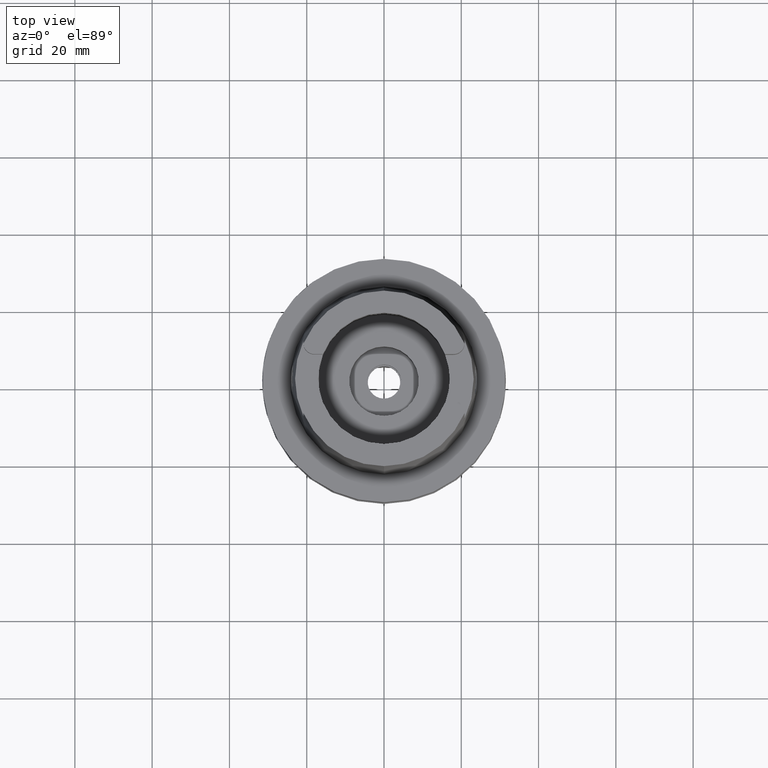
[diagram: clean part render]
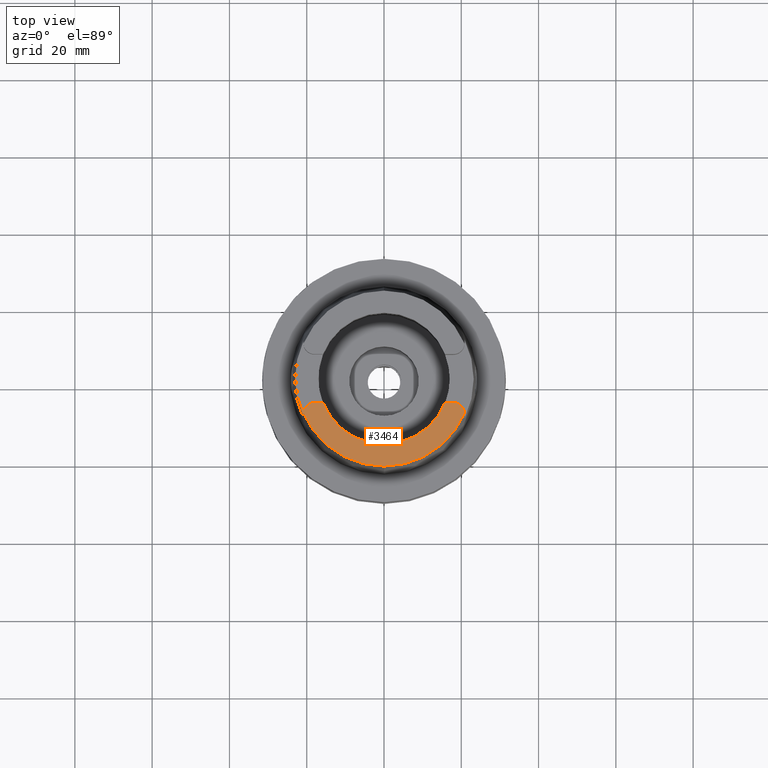
[diagram: same view with one face highlighted and labeled with its STEP entity id]
A machine part, top view. The second image highlights one B-rep face of the part: STEP entity #3464.
In plain terms, the highlighted planar face has unit normal (0, 0, 1).
Its self-contained STEP definition (entity closure, byte-faithful):
#99=DIRECTION('',(-1.E0,8.644330667353E-14,0.E0));
#100=VECTOR('',#99,2.188509563969E0);
#101=CARTESIAN_POINT('',(-1.580149043603E1,-6.27E0,3.2E1));
#102=LINE('',#101,#100);
#106=CARTESIAN_POINT('',(-1.799E1,-9.15E0,3.2E1));
#107=DIRECTION('',(0.E0,0.E0,-1.E0));
#108=DIRECTION('',(-9.982388918271E-1,5.932212777606E-2,0.E0));
#109=AXIS2_PLACEMENT_3D('',#106,#107,#108);
#114=CARTESIAN_POINT('',(0.E0,0.E0,3.2E1));
#115=DIRECTION('',(0.E0,0.E0,1.E0));
#116=DIRECTION('',(-9.294994374136E-1,-3.688235294118E-1,0.E0));
#117=AXIS2_PLACEMENT_3D('',#114,#115,#116);
#122=CARTESIAN_POINT('',(0.E0,0.E0,3.2E1));
#123=DIRECTION('',(0.E0,0.E0,1.E0));
#124=DIRECTION('',(0.E0,-1.E0,0.E0));
#125=AXIS2_PLACEMENT_3D('',#122,#123,#124);
#130=CARTESIAN_POINT('',(1.799E1,-9.15E0,3.2E1));
#131=DIRECTION('',(0.E0,0.E0,-1.E0));
#132=DIRECTION('',(0.E0,1.E0,0.E0));
#133=AXIS2_PLACEMENT_3D('',#130,#131,#132);
#138=CARTESIAN_POINT('',(0.E0,0.E0,3.2E1));
#139=DIRECTION('',(0.E0,0.E0,-1.E0));
#140=DIRECTION('',(9.185535885356E-1,-3.952964773285E-1,0.E0));
#141=AXIS2_PLACEMENT_3D('',#138,#139,#140);
#146=CARTESIAN_POINT('',(0.E0,0.E0,3.2E1));
#147=DIRECTION('',(0.E0,0.E0,-1.E0));
#148=DIRECTION('',(0.E0,-1.E0,0.E0));
#149=AXIS2_PLACEMENT_3D('',#146,#147,#148);
#419=DIRECTION('',(-1.E0,-8.806665515566E-14,0.E0));
#420=VECTOR('',#419,2.188509563969E0);
#421=CARTESIAN_POINT('',(1.799E1,-6.27E0,3.2E1));
#422=LINE('',#421,#420);
#2960=CARTESIAN_POINT('',(0.E0,-1.7E1,3.2E1));
#2961=VERTEX_POINT('',#2960);
#2962=CARTESIAN_POINT('',(-1.580149043603E1,-6.27E0,3.2E1));
#2963=VERTEX_POINT('',#2962);
#2976=CARTESIAN_POINT('',(-1.799E1,-6.27E0,3.2E1));
#2977=VERTEX_POINT('',#2976);
#2990=CARTESIAN_POINT('',(-2.086492800846E1,-8.979152272005E0,3.2E1));
#2991=VERTEX_POINT('',#2990);
#2992=CARTESIAN_POINT('',(1.580149043603E1,-6.27E0,3.2E1));
#2993=VERTEX_POINT('',#2992);
#2994=CARTESIAN_POINT('',(1.799E1,-6.27E0,3.2E1));
#2995=VERTEX_POINT('',#2994);
#2996=CARTESIAN_POINT('',(2.086492800846E1,-8.979152272005E0,3.2E1));
#2997=VERTEX_POINT('',#2996);
#2998=CARTESIAN_POINT('',(0.E0,-2.271498175923E1,3.2E1));
#2999=VERTEX_POINT('',#2998);
#3443=CARTESIAN_POINT('',(0.E0,0.E0,3.2E1));
#3444=DIRECTION('',(0.E0,0.E0,1.E0));
#3445=DIRECTION('',(0.E0,1.E0,0.E0));
#3446=AXIS2_PLACEMENT_3D('',#3443,#3444,#3445);
#3447=PLANE('',#3446);
#3449=ORIENTED_EDGE('',*,*,#3448,.T.);
#3450=ORIENTED_EDGE('',*,*,#3435,.F.);
#3451=ORIENTED_EDGE('',*,*,#3399,.T.);
#3453=ORIENTED_EDGE('',*,*,#3452,.T.);
#3455=ORIENTED_EDGE('',*,*,#3454,.F.);
#3457=ORIENTED_EDGE('',*,*,#3456,.T.);
#3459=ORIENTED_EDGE('',*,*,#3458,.T.);
#3461=ORIENTED_EDGE('',*,*,#3460,.T.);
#3462=EDGE_LOOP('',(#3449,#3450,#3451,#3453,#3455,#3457,#3459,#3461));
#3463=FACE_OUTER_BOUND('',#3462,.F.);
#110=CIRCLE('',#109,2.88E0);
#118=CIRCLE('',#117,1.7E1);
#126=CIRCLE('',#125,1.7E1);
#134=CIRCLE('',#133,2.88E0);
#142=CIRCLE('',#141,2.271498175923E1);
#150=CIRCLE('',#149,2.271498175923E1);
#3399=EDGE_CURVE('',#2963,#2961,#118,.T.);
#3435=EDGE_CURVE('',#2963,#2977,#102,.T.);
#3448=EDGE_CURVE('',#2991,#2977,#110,.T.);
#3452=EDGE_CURVE('',#2961,#2993,#126,.T.);
#3454=EDGE_CURVE('',#2995,#2993,#422,.T.);
#3456=EDGE_CURVE('',#2995,#2997,#134,.T.);
#3458=EDGE_CURVE('',#2997,#2999,#142,.T.);
#3460=EDGE_CURVE('',#2999,#2991,#150,.T.);
#3464=ADVANCED_FACE('',(#3463),#3447,.T.);